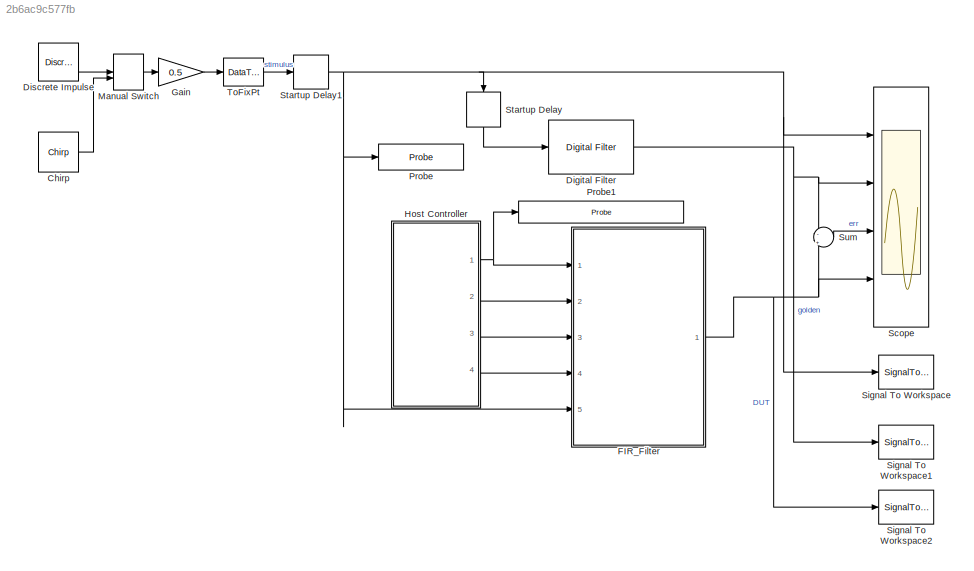
MODEL slx_2b6ac9c577fb
KIND model
CONFIG AbsTol = auto
CONFIG FixedStep = auto
CONFIG MaxStep = auto
CONFIG MinStep = auto
CONFIG PreLoadFcn = Param_fir
CONFIG RelTol = 1e-3
CONFIG SampleTimeConstraint = Unconstrained
CONFIG Solver = FixedStepDiscrete
CONFIG SolverMode = SingleTasking
CONFIG SolverName = FixedStepDiscrete
CONFIG StartTime = 0.0
CONFIG StopTime = SimEnd+Ts2*NTaps*2
BLOCK [Reference] Chirp  REF=dspsrcs4/Chirp
  Ports = [0, 1]
  SourceBlock = dspsrcs4/Chirp
  SourceType = Chirp
BLOCK [Reference] Digital Filter  REF=dspobslib/Digital Filter
  Ports = [1, 1]
  SourceBlock = dspobslib/Digital Filter
  SourceType = Digital Filter
  UserDataPersistent = on
BLOCK [Reference] Discrete Impulse  REF=dspsrcs4/Discrete 
Impulse
  Ports = [0, 1]
  SourceBlock = dspsrcs4/Discrete \nImpulse
  SourceType = Discrete Impulse
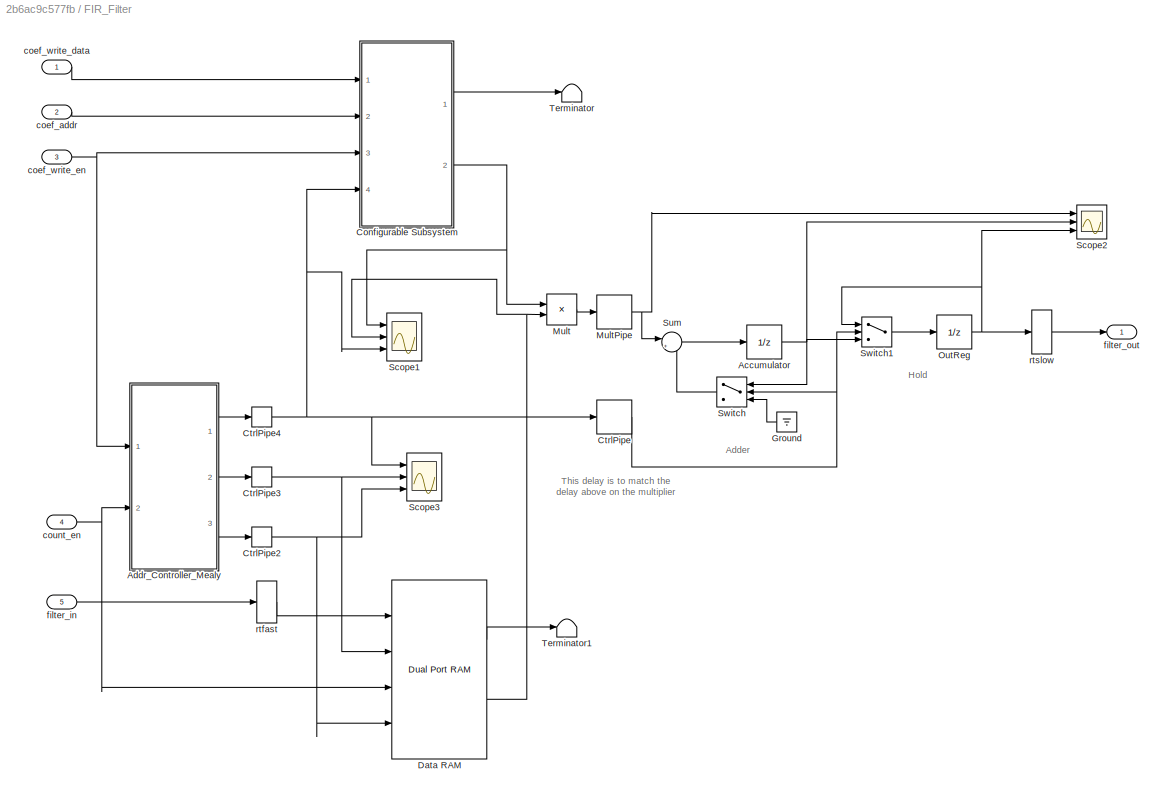
BLOCK [SubSystem] FIR_Filter
  Ports = [5, 1]
  RequestExecContextInheritance = off
  Variant = off
BLOCK [UnitDelay] FIR_Filter/Accumulator
  SampleTime = -1
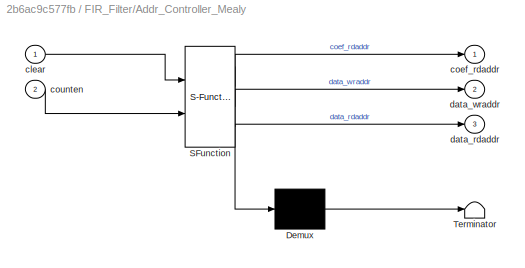
BLOCK [SubSystem] FIR_Filter/Addr_Controller_Mealy
  ErrorFcn = Stateflow.Translate.translate
  PermitHierarchicalResolution = ExplicitOnly
  Ports = [2, 3]
  RequestExecContextInheritance = off
  SFBlockType = Chart
  TreatAsAtomicUnit = on
  Variant = off
BLOCK [Demux] FIR_Filter/Addr_Controller_Mealy/ Demux 
  Outputs = 1
  Ports = [1, 1]
BLOCK [S-Function] FIR_Filter/Addr_Controller_Mealy/ SFunction 
  EnableBusSupport = on
  FunctionName = sf_sfun
  Parameters = NTaps
  PortCounts = [2 4]
  Ports = [2, 4]
  SFunctionDeploymentMode = off
  Tag = Stateflow S-Function ad_configmodel 2
BLOCK [Terminator] FIR_Filter/Addr_Controller_Mealy/ Terminator 
BLOCK [Inport] FIR_Filter/Addr_Controller_Mealy/clear
  IconDisplay = Port number
BLOCK [Outport] FIR_Filter/Addr_Controller_Mealy/coef_rdaddr
  IconDisplay = Port number
BLOCK [Inport] FIR_Filter/Addr_Controller_Mealy/counten
  IconDisplay = Port number
  Port = 2
BLOCK [Outport] FIR_Filter/Addr_Controller_Mealy/data_rdaddr
  IconDisplay = Port number
  Port = 3
BLOCK [Outport] FIR_Filter/Addr_Controller_Mealy/data_wraddr
  IconDisplay = Port number
  Port = 2
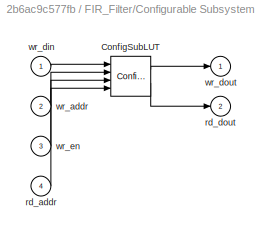
BLOCK [SubSystem] FIR_Filter/Configurable Subsystem
  AttributesFormatString = %<BlockChoice>
  BlockChoice = ConfigSubLUT
  MemberBlocks = ConfigSubLUT,ConfigSubRAM
  Ports = [4, 2]
  RequestExecContextInheritance = off
  TemplateBlock = ad_configsub/Configurable\nSubsystem
  Variant = off
BLOCK [Reference] FIR_Filter/Configurable Subsystem/ConfigSubLUT  REF=ad_configsub/ConfigSubLUT  (lib defined in slx_f8fb566ec2d8)
  Ports = [4, 2]
  SourceBlock = ad_configsub/ConfigSubLUT
  SourceType = SubSystem
BLOCK [Inport] FIR_Filter/Configurable Subsystem/rd_addr
  IconDisplay = Port number
  Port = 4
BLOCK [Outport] FIR_Filter/Configurable Subsystem/rd_dout
  IconDisplay = Port number
  Port = 2
BLOCK [Inport] FIR_Filter/Configurable Subsystem/wr_addr
  IconDisplay = Port number
  Port = 2
BLOCK [Inport] FIR_Filter/Configurable Subsystem/wr_din
  IconDisplay = Port number
BLOCK [Outport] FIR_Filter/Configurable Subsystem/wr_dout
  IconDisplay = Port number
BLOCK [Inport] FIR_Filter/Configurable Subsystem/wr_en
  IconDisplay = Port number
  Port = 3
BLOCK [Delay] FIR_Filter/CtrlPipe
  InputPortMap = u0
  InputProcessing = Inherited
  Ports = [1, 1]
  UserDataPersistent = on
BLOCK [Delay] FIR_Filter/CtrlPipe2
  DelayLength = 1
  InputPortMap = u0
  InputProcessing = Inherited
  Ports = [1, 1]
  UserDataPersistent = on
BLOCK [Delay] FIR_Filter/CtrlPipe3
  DelayLength = 1
  InputPortMap = u0
  InputProcessing = Inherited
  Ports = [1, 1]
  UserDataPersistent = on
BLOCK [Delay] FIR_Filter/CtrlPipe4
  DelayLength = 1
  InputPortMap = u0
  InputProcessing = Inherited
  Ports = [1, 1]
  UserDataPersistent = on
BLOCK [Reference] FIR_Filter/Data RAM  REF=hdlsllib/HDL Operations/Dual Port RAM
  Ports = [4, 2]
  SourceBlock = hdlsllib/HDL Operations/Dual Port RAM
  SourceType = Dual-port RAM
BLOCK [Ground] FIR_Filter/Ground
BLOCK [Product] FIR_Filter/Mult
  InputSameDT = off
  OutDataTypeStr = Inherit: Inherit via internal rule
  Ports = [2, 1]
  RndMeth = Floor
  SaturateOnIntegerOverflow = off
BLOCK [Delay] FIR_Filter/MultPipe
  InputPortMap = u0
  InputProcessing = Inherited
  Ports = [1, 1]
  UserDataPersistent = on
BLOCK [UnitDelay] FIR_Filter/OutReg
  SampleTime = Ts1
BLOCK [Scope] FIR_Filter/Scope1
  NumInputPorts = 3
  Ports = [3]
  ScopeSpecificationString = C++SS(StrPVP('Location','[633, 62, 1274, 675]'),StrPVP('Open','off'),StrPVP('ZoomMode','xonly'),MxPVP('AxesTitles',24,'struct(''axes1'',''%<SignalLabel>'',''axes2'',''%<SignalLabel>'',''axes3'',''%<SignalLabel>'')'),StrPVP('TimeRange','0.06'),StrPVP('YMin','-0.005234159779614517~-0.5~0'),StrPVP('YMax','0.00438823496674717~1~80'),StrPVP('SaveName','ScopeData3'),StrPVP('DataFormat','StructureWithTim...<+134ch>
BLOCK [Scope] FIR_Filter/Scope2
  NumInputPorts = 3
  Ports = [3]
  ScopeSpecificationString = C++SS(StrPVP('Location','[518, 54, 1273, 702]'),StrPVP('Open','off'),StrPVP('ZoomMode','xonly'),MxPVP('AxesTitles',24,'struct(''axes1'',''%<SignalLabel>'',''axes2'',''%<SignalLabel>'',''axes3'',''%<SignalLabel>'')'),StrPVP('TimeRange','8000'),StrPVP('YMin','-0.05~-0.05~-0.05'),StrPVP('YMax','0.3~0.3~0.3'),StrPVP('SaveName','ScopeData4'),StrPVP('DataFormat','StructureWithTime'),StrPVP('LimitDataPoi...<+110ch>
BLOCK [Scope] FIR_Filter/Scope3
  NumInputPorts = 3
  Ports = [3]
  ScopeSpecificationString = C++SS(StrPVP('Location','[652, 62, 1273, 675]'),StrPVP('Open','off'),StrPVP('ZoomMode','xonly'),MxPVP('AxesTitles',24,'struct(''axes1'',''%<SignalLabel>'',''axes2'',''%<SignalLabel>'',''axes3'',''%<SignalLabel>'')'),StrPVP('TimeRange','0.13'),StrPVP('YMin','0~0~0'),StrPVP('YMax','140~140~140'),StrPVP('SaveName','ScopeData2'),StrPVP('DataFormat','StructureWithTime'),StrPVP('LimitDataPoints','off'),...<+98ch>
BLOCK [Sum] FIR_Filter/Sum
  IconShape = round
  InputSameDT = off
  Inputs = |++
  OutDataTypeStr = fixdt(1,30,24)
  Ports = [2, 1]
  SaturateOnIntegerOverflow = off
BLOCK [Switch] FIR_Filter/Switch
  Criteria = u2 ~= 0
  InputSameDT = off
  SaturateOnIntegerOverflow = off
BLOCK [Switch] FIR_Filter/Switch1
  Criteria = u2 ~= 0
  InputSameDT = off
  SaturateOnIntegerOverflow = off
BLOCK [Terminator] FIR_Filter/Terminator
BLOCK [Terminator] FIR_Filter/Terminator1
BLOCK [Inport] FIR_Filter/coef_addr
  IconDisplay = Port number
  Port = 2
BLOCK [Inport] FIR_Filter/coef_write_data
  IconDisplay = Port number
  PortDimensions = 1
BLOCK [Inport] FIR_Filter/coef_write_en
  IconDisplay = Port number
  OutDataTypeStr = boolean
  Port = 3
BLOCK [Inport] FIR_Filter/count_en
  IconDisplay = Port number
  OutDataTypeStr = boolean
  Port = 4
BLOCK [Inport] FIR_Filter/filter_in
  IconDisplay = Port number
  Port = 5
  PortDimensions = 1
BLOCK [Outport] FIR_Filter/filter_out
  IconDisplay = Port number
BLOCK [RateTransition] FIR_Filter/rtfast
BLOCK [RateTransition] FIR_Filter/rtslow
  OutPortSampleTime = Ts2
BLOCK [Gain] Gain
  Gain = 0.5
  OutDataTypeStr = Inherit: Inherit via internal rule
  ParamDataTypeStr = Inherit: Inherit via internal rule
  SaturateOnIntegerOverflow = off
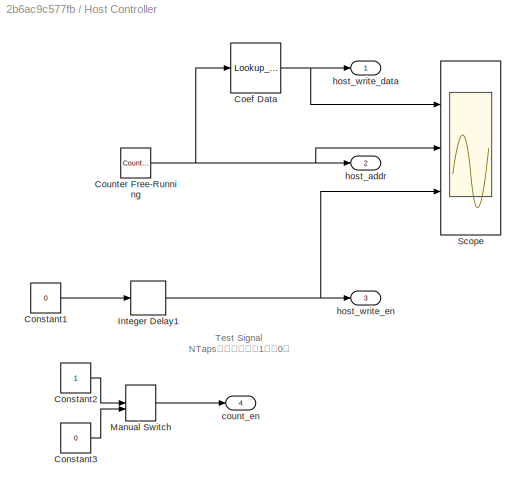
BLOCK [SubSystem] Host Controller
  Ports = [0, 4]
  RequestExecContextInheritance = off
  Variant = off
BLOCK [Lookup_n-D] Host Controller/Coef Data
  BreakpointsForDimension1 = [0:NTaps-1]
  ExtrapMethod = Clip
  IndexSearchMethod = Evenly spaced points
  NumberOfTableDimensions = 1
  OutDataTypeStr = fixdt(1,16,15)
  Ports = [1, 1]
  Table = fliplr(Numerator)
BLOCK [Constant] Host Controller/Constant1
  OutDataTypeStr = boolean
  Value = 0
BLOCK [Constant] Host Controller/Constant2
  OutDataTypeStr = boolean
BLOCK [Constant] Host Controller/Constant3
  OutDataTypeStr = boolean
  Value = 0
BLOCK [Reference] Host Controller/Counter Free-Running  REF=simulink/Sources/Counter
Free-Running
  Ports = [0, 1]
  SourceBlock = simulink/Sources/Counter\nFree-Running
  SourceType = Counter Free-Running
BLOCK [Delay] Host Controller/Integer Delay1
  DelayLength = NTaps
  InitialCondition = 1
  InputPortMap = u0
  InputProcessing = Inherited
  Ports = [1, 1]
BLOCK [ManualSwitch] Host Controller/Manual Switch
BLOCK [Scope] Host Controller/Scope
  NumInputPorts = 3
  Ports = [3]
  ScopeSpecificationString = C++SS(StrPVP('Location','[697, 61, 1275, 674]'),StrPVP('Open','off'),StrPVP('ZoomMode','xonly'),MxPVP('AxesTitles',24,'struct(''axes1'',''%<SignalLabel>'',''axes2'',''%<SignalLabel>'',''axes3'',''%<SignalLabel>'')'),StrPVP('TimeRange','0.03'),StrPVP('YMin','-0.1~0~-1'),StrPVP('YMax','0.6000000000000001~140~2'),StrPVP('SaveName','ScopeData1'),StrPVP('DataFormat','StructureWithTime'),StrPVP('LimitDa...<+115ch>
BLOCK [Outport] Host Controller/count_en
  IconDisplay = Port number
  Port = 4
BLOCK [Outport] Host Controller/host_addr
  IconDisplay = Port number
  Port = 2
BLOCK [Outport] Host Controller/host_write_data
  IconDisplay = Port number
BLOCK [Outport] Host Controller/host_write_en
  IconDisplay = Port number
  Port = 3
BLOCK [ManualSwitch] Manual Switch
  CurrentSetting = 0
BLOCK [Probe] Probe
  Ports = [1, 1]
  ProbeComplexSignal = off
  ProbeWidth = off
BLOCK [Probe] Probe1
  Ports = [1, 1]
  ProbeComplexSignal = off
  ProbeWidth = off
BLOCK [Scope] Scope
  NumInputPorts = 4
  Ports = [4]
  ScopeSpecificationString = Simulink.scopes.TimeScopeBlockCfg('CurrentConfiguration', extmgr.ConfigurationSet(extmgr.Configuration('Core','General UI',true),extmgr.Configuration('Core','Source UI',true),extmgr.Configuration('Sources','WiredSimulink',true,'DataLoggingSaveFormat','StructureWithTime','DataLoggingDecimation','1','DataLoggingDecimateData',true),extmgr.Configuration('Visuals','Time Domain',true,'SerializedDisplays...<+3781ch>
BLOCK [SignalToWorkspace] Signal To Workspace
  CopyFcn = dspblkcopystw(gcbh);
  MaxDataPoints = inf
  Ports = [1]
  Save2DSignal = 3-D array (concatenate along third dimension)
  VariableName = filter_in
BLOCK [SignalToWorkspace] Signal To Workspace1
  CopyFcn = dspblkcopystw(gcbh);
  MaxDataPoints = inf
  Ports = [1]
  Save2DSignal = 3-D array (concatenate along third dimension)
  VariableName = filter_out
BLOCK [SignalToWorkspace] Signal To Workspace2
  CopyFcn = dspblkcopystw(gcbh);
  MaxDataPoints = inf
  Ports = [1]
  Save2DSignal = 3-D array (concatenate along third dimension)
  VariableName = dut_out
BLOCK [Delay] Startup Delay
  DelayLength = 3
  InputPortMap = u0
  InputProcessing = Inherited
  Ports = [1, 1]
  UserDataPersistent = on
BLOCK [Delay] Startup Delay1
  DelayLength = 1
  InputPortMap = u0
  InputProcessing = Inherited
  Ports = [1, 1]
  UserDataPersistent = on
BLOCK [Sum] Sum
  IconShape = round
  InputSameDT = off
  Inputs = -|+
  OutDataTypeStr = Inherit: Inherit via internal rule
  Ports = [2, 1]
  SaturateOnIntegerOverflow = off
BLOCK [DataTypeConversion] ToFixPt
  OutDataTypeStr = fixdt(1,10,9)
  RndMeth = Nearest
ANNOTATION FIR_Filter: Adder
ANNOTATION FIR_Filter: Hold
ANNOTATION FIR_Filter: This delay is to match the delay above on the multiplier
ANNOTATION Host Controller: Test Signal NTapsサンプル後に1から0に
LINE Chirp:1 -> Manual Switch:2
NET Digital Filter:1 -> Scope:2, Signal To Workspace1:1, Sum:1
LINE Discrete Impulse:1 -> Manual Switch:1
NET FIR_Filter/Accumulator:1 -> FIR_Filter/Scope2:2, FIR_Filter/Switch1:3, FIR_Filter/Switch:1
LINE FIR_Filter/Addr_Controller_Mealy:1 -> FIR_Filter/CtrlPipe4:1
LINE FIR_Filter/Addr_Controller_Mealy:2 -> FIR_Filter/CtrlPipe3:1
LINE FIR_Filter/Addr_Controller_Mealy:3 -> FIR_Filter/CtrlPipe2:1
LINE FIR_Filter/Configurable Subsystem:1 -> FIR_Filter/Terminator:1
NET FIR_Filter/Configurable Subsystem:2 -> FIR_Filter/Mult:1, FIR_Filter/Scope1:1
NET FIR_Filter/CtrlPipe2:1 -> FIR_Filter/Data RAM:4, FIR_Filter/Scope3:3
NET FIR_Filter/CtrlPipe3:1 -> FIR_Filter/Data RAM:2, FIR_Filter/Scope3:2
NET FIR_Filter/CtrlPipe4:1 -> FIR_Filter/Configurable Subsystem:4, FIR_Filter/CtrlPipe:1, FIR_Filter/Scope1:3, FIR_Filter/Scope3:1
NET FIR_Filter/CtrlPipe:1 -> FIR_Filter/Switch1:2, FIR_Filter/Switch:2
LINE FIR_Filter/Data RAM:1 -> FIR_Filter/Terminator1:1
NET FIR_Filter/Data RAM:2 -> FIR_Filter/Mult:2, FIR_Filter/Scope1:2
LINE FIR_Filter/Ground:1 -> FIR_Filter/Switch:3
LINE FIR_Filter/Mult:1 -> FIR_Filter/MultPipe:1
NET FIR_Filter/MultPipe:1 -> FIR_Filter/Scope2:1, FIR_Filter/Sum:1
NET FIR_Filter/OutReg:1 -> FIR_Filter/Scope2:3, FIR_Filter/Switch1:1, FIR_Filter/rtslow:1
LINE FIR_Filter/Sum:1 -> FIR_Filter/Accumulator:1
LINE FIR_Filter/Switch1:1 -> FIR_Filter/OutReg:1
LINE FIR_Filter/Switch:1 -> FIR_Filter/Sum:2
LINE FIR_Filter/coef_addr:1 -> FIR_Filter/Configurable Subsystem:2
LINE FIR_Filter/coef_write_data:1 -> FIR_Filter/Configurable Subsystem:1
NET FIR_Filter/coef_write_en:1 -> FIR_Filter/Addr_Controller_Mealy:1, FIR_Filter/Configurable Subsystem:3
NET FIR_Filter/count_en:1 -> FIR_Filter/Addr_Controller_Mealy:2, FIR_Filter/Data RAM:3
LINE FIR_Filter/filter_in:1 -> FIR_Filter/rtfast:1
LINE FIR_Filter/rtfast:1 -> FIR_Filter/Data RAM:1
LINE FIR_Filter/rtslow:1 -> FIR_Filter/filter_out:1
NET FIR_Filter:1 -> Scope:4, Signal To Workspace2:1, Sum:2
LINE Gain:1 -> ToFixPt:1
NET Host Controller/Coef Data:1 -> Host Controller/Scope:1, Host Controller/host_write_data:1
LINE Host Controller/Constant1:1 -> Host Controller/Integer Delay1:1
LINE Host Controller/Constant2:1 -> Host Controller/Manual Switch:1
LINE Host Controller/Constant3:1 -> Host Controller/Manual Switch:2
NET Host Controller/Counter Free-Running:1 -> Host Controller/Coef Data:1, Host Controller/Scope:2, Host Controller/host_addr:1
NET Host Controller/Integer Delay1:1 -> Host Controller/Scope:3, Host Controller/host_write_en:1
LINE Host Controller/Manual Switch:1 -> Host Controller/count_en:1
NET Host Controller:1 -> FIR_Filter:1, Probe1:1
LINE Host Controller:2 -> FIR_Filter:2
LINE Host Controller:3 -> FIR_Filter:3
LINE Host Controller:4 -> FIR_Filter:4
LINE Manual Switch:1 -> Gain:1
NET Startup Delay1:1 -> FIR_Filter:5, Probe:1, Scope:1, Signal To Workspace:1, Startup Delay:1
LINE Startup Delay:1 -> Digital Filter:1
LINE Sum:1 -> Scope:3
LINE ToFixPt:1 -> Startup Delay1:1
note: NET lines group one-source signal fan-out (src -> all destinations, sorted); 1:1 wires keep LINE
CHART FIR_Filter/Addr_Controller_Mealy states=6 transitions=18
  STATE_LABEL 'Increment1/'
  STATE_LABEL 'Init/'
  STATE_LABEL 'increment_action'
  STATE_LABEL '{\nAddr_coefrd++;\n}'
  STATE_LABEL '[Addr_datawr>=Addr_coefrd]{\nAddr_datard=Addr_datawr-Addr_coefrd;\n}'
  STATE_LABEL '{\nAddr_datard=Addr_datawr+NTaps-Addr_coefrd;\n}'
  STATE_LABEL 'init_action'
  STATE_LABEL '{\nAddr_coefrd=0;\n}\n/*\n係数アドレスリセット\n*/'
  STATE_LABEL '[Addr_datawr>=NTaps-1]\n{\nAddr_datawr=0;\nAddr_datard=0;\n}\n/*\nDataアドレスリセット\n*/'
  STATE_LABEL '{\nAddr_datawr++;\nAddr_datard=Addr_datawr;\n}'
  STATE_LABEL 'output_action'
  STATE_LABEL '{\ncoef_rdaddr=Addr_coefrd;\ndata_rdaddr=Addr_datard;\ndata_wraddr=Addr_datawr;\n}'
  STATE_LABEL 'Nop/'
